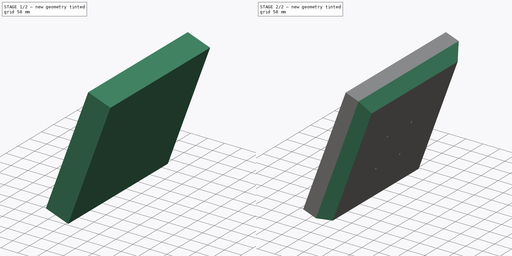
[diagram: build sequence overview — one tinted view per stage of 2, left to right]
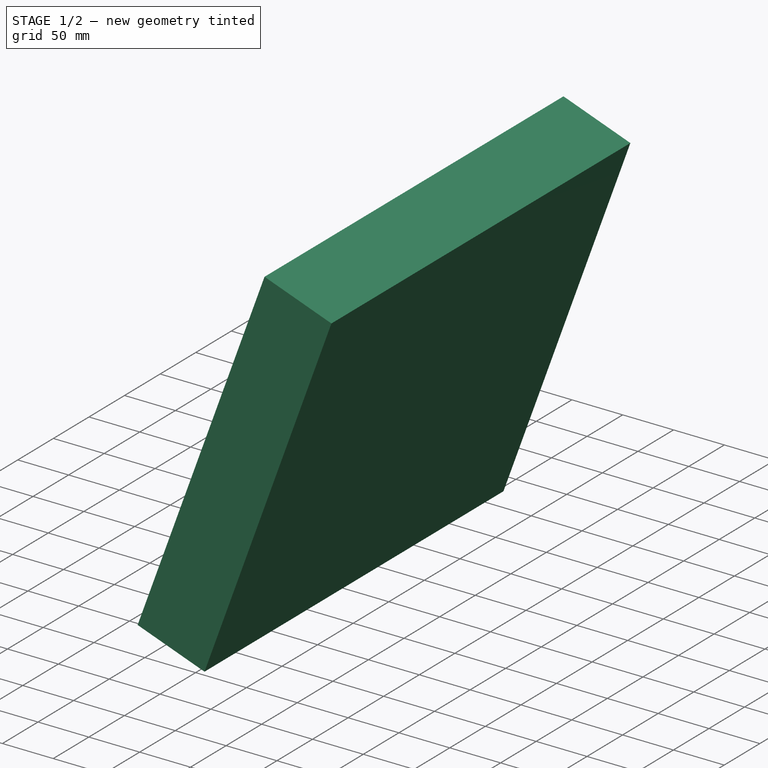
[diagram: stage 1 of 2 — iso view after this stage's code; geometry added in this stage tinted green]
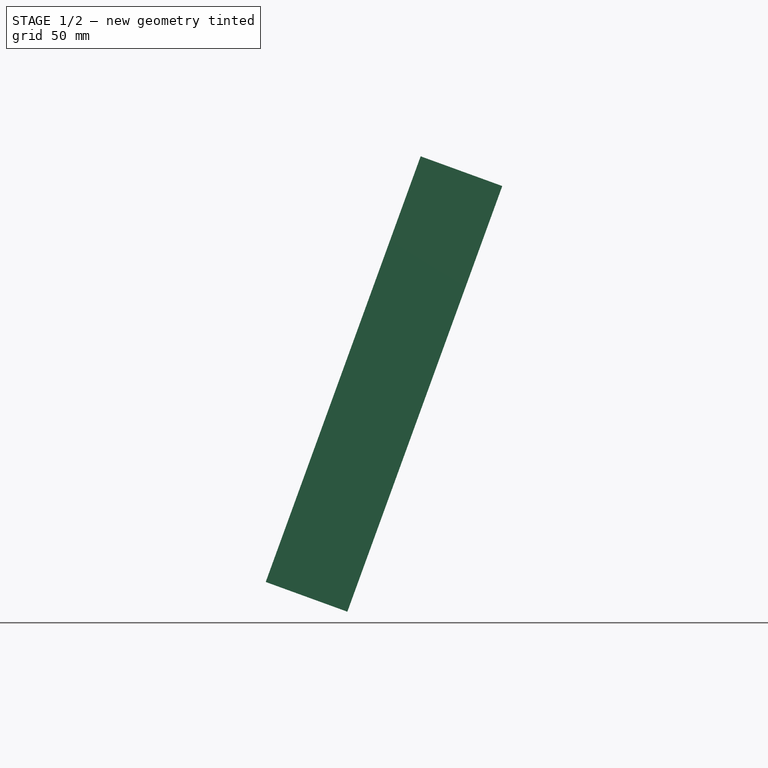
[diagram: stage 1 of 2 — front view after this stage's code; geometry added in this stage tinted green]
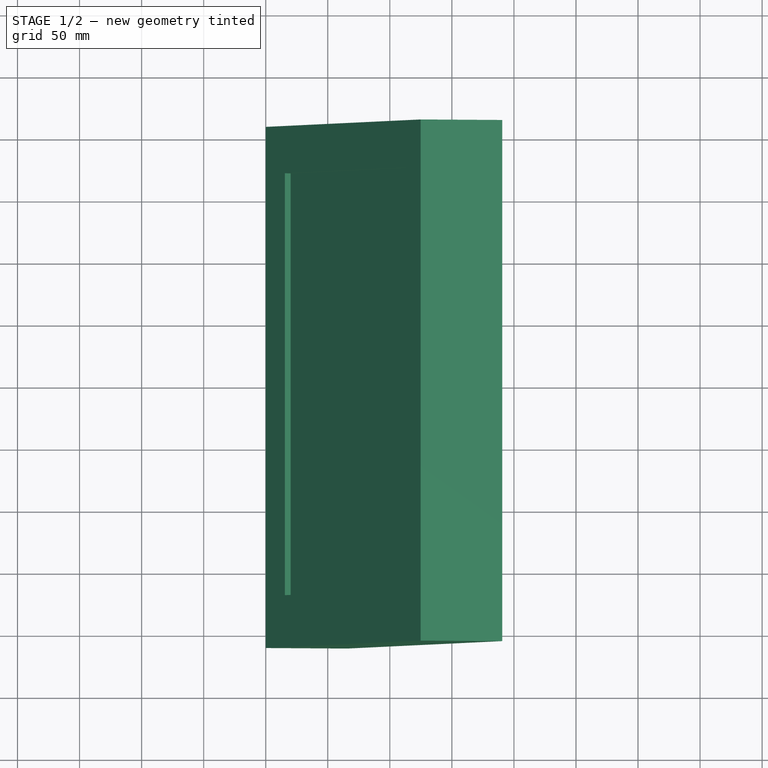
[diagram: stage 1 of 2 — top view after this stage's code; geometry added in this stage tinted green]
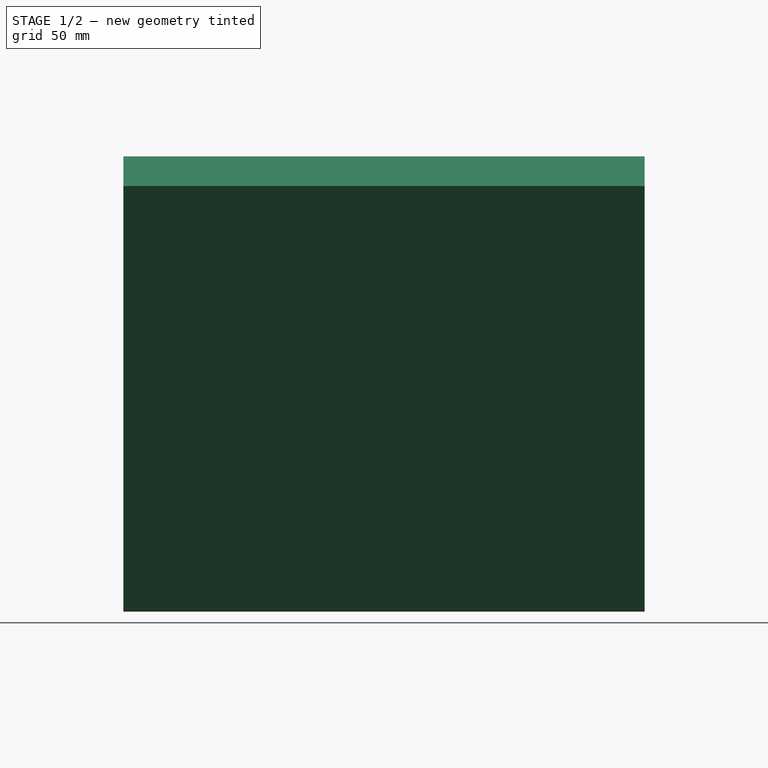
[diagram: stage 1 of 2 — right view after this stage's code; geometry added in this stage tinted green]
FCSTD DOCUMENT  (FreeCAD 0.19R24291 (Git))
Label: 1100_Monitor_AOC-LM-700_420-365-70
License: All rights reserved
LicenseURL: http://en.wikipedia.org/wiki/All_rights_reserved
objects: Sketcher::SketchObject×3, PartDesign::Pad×1, PartDesign::Pocket×1, Spreadsheet::Sheet×1, PartDesign::Hole×1, PartDesign::Chamfer×1, PartDesign::Body×1, App::Part×1
note: 12 computed .brp shape members not serialized (recipe doc carries the construction recipe); baked Part::Feature solids carry a one-line shape summary decoded from their .brp

FEATURE [Sketcher::SketchObject] Sketch002
  FullyConstrained = true
  MapMode = 5
  Placement = pos=(0,0,0) rot=(0,0.707107,0.707107;3.14159rad)
  Support = -> [XZ_Plane001]
  expr: Constraints[7] = <<Monitor>>.D_monitor
  expr: Constraints[8] = <<Monitor>>.H_monitor
  sketch-geometry (4):
    g0: LineSegment StartX=-124.837 StartY=342.988 StartZ=0 EndX=0 EndY=0 EndZ=0
    g1: LineSegment StartX=0 StartY=0 StartZ=0 EndX=-65.7785 EndY=-23.9414 EndZ=0
    g2: LineSegment StartX=-65.7785 StartY=-23.9414 StartZ=0 EndX=-190.616 EndY=319.046 EndZ=0
    g3: LineSegment StartX=-190.616 StartY=319.046 StartZ=0 EndX=-124.837 EndY=342.988 EndZ=0
  constraints (11):
    c: Coincident(g2,g1)
    c: Coincident(g3,g2)
    c: Coincident(g3,g0)
    c: Perpendicular(g1,g0)
    c: Perpendicular(g2,g1)
    c: Perpendicular(g2,g3)
    c: Coincident(g1,g0)
    c: Distance(g1) = 70
    c: Distance(g2) = 365
    c: Coincident(g0,g-1)
    c: Angle(g-2,g0) = 0.349066
FEATURE [PartDesign::Pad] Pad002
  AllowMultiFace = false
  Direction = (1,1,1)
  Length = 210
  Length2 = 210
  Placement = pos=(0,0,0) rot=(1,0,0;1.5708rad)
  Profile = -> Sketch002
  Type = 4
  expr: Length = <<Monitor>>.W_monitor / 2
  expr: Length2 = <<Monitor>>.W_monitor / 2
FEATURE [Sketcher::SketchObject] Sketch
  ExternalGeometry = -> [Pad002]
  FullyConstrained = false
  MapMode = 5
  Placement = pos=(-2.67e-14,0,9.7e-15) rot=(-0.573576,0,0.819152;3.14159rad)
  Support = -> [Pad002]
  expr: Constraints[16] = <<Monitor>>.LCD_Edge_Bottom
  expr: Constraints[17] = <<Monitor>>.LCD_Width
  expr: Constraints[18] = <<Monitor>>.LCD_Heiglt
  sketch-geometry (7):
    g0: LineSegment StartX=-187.5 StartY=-1.85365 StartZ=0 EndX=-45 EndY=-171.854 EndZ=0
    g1: LineSegment StartX=-330 StartY=168.146 StartZ=0 EndX=-45 EndY=168.146 EndZ=0
    g2: LineSegment StartX=-45 StartY=168.146 StartZ=0 EndX=-45 EndY=-171.854 EndZ=0
    g3: LineSegment StartX=-45 StartY=-171.854 StartZ=0 EndX=-330 EndY=-171.854 EndZ=0
    g4: LineSegment StartX=-330 StartY=-171.854 StartZ=0 EndX=-330 EndY=168.146 EndZ=0
    g5: LineSegment StartX=-330 StartY=168.146 StartZ=0 EndX=-187.5 EndY=-1.85365 EndZ=0
    g6: LineSegment StartX=0 StartY=0 StartZ=0 EndX=-45 EndY=0 EndZ=0
  constraints (19):
    c: Coincident(g1,g2)
    c: Coincident(g2,g3)
    c: Coincident(g3,g4)
    c: Horizontal(g1)
    c: Horizontal(g3)
    c: Vertical(g2)
    c: Vertical(g4)
    c: Coincident(g2,g0)
    c: Coincident(g4,g1)
    c: Coincident(g5,g1)
    c: Coincident(g5,g0)
    c: Equal(g0,g5)
    c: Parallel(g5,g0)
    c: Coincident(g6,g-1)
    c: PointOnObject(g6,g2)
    c: Perpendicular(g2,g6)
    c: DistanceX(g6,g6) = 45
    c: DistanceY(g4,g4) = 340
    c: DistanceX(g1,g1) = 285
FEATURE [PartDesign::Pocket] Pocket
  AllowMultiFace = false
  BaseFeature = -> Pad002
  Length = 5
  Length2 = 100
  Placement = pos=(0,0,0) rot=(1,0,0;1.5708rad)
  Profile = -> Sketch
  Type = 0
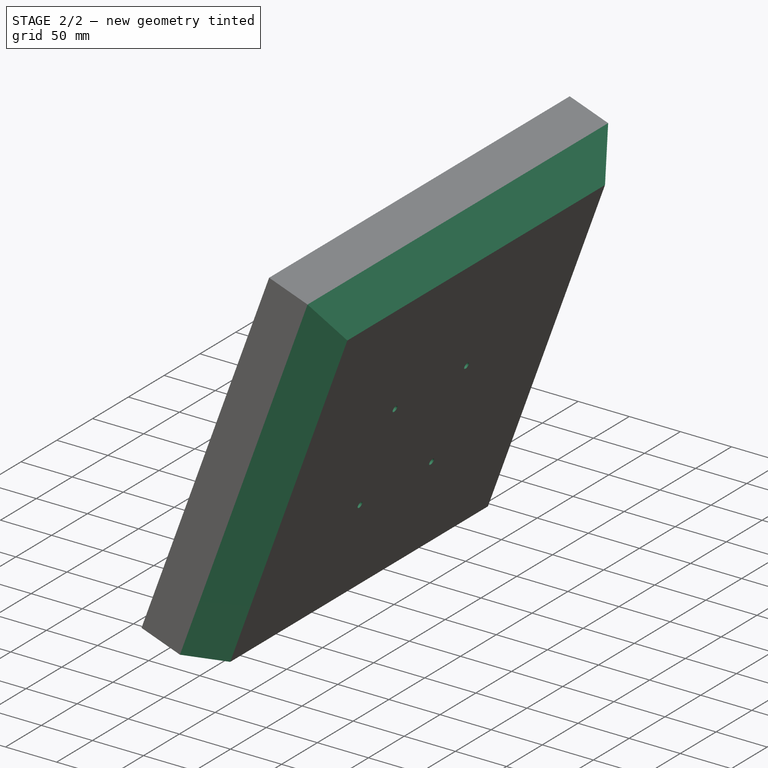
[diagram: stage 2 of 2 — iso view after this stage's code; geometry added in this stage tinted green]
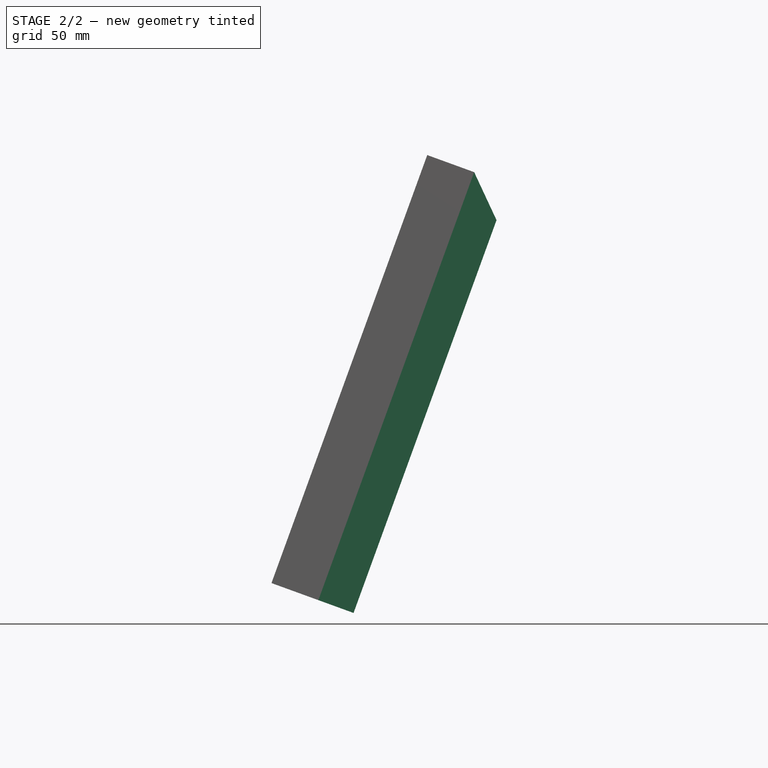
[diagram: stage 2 of 2 — front view after this stage's code; geometry added in this stage tinted green]
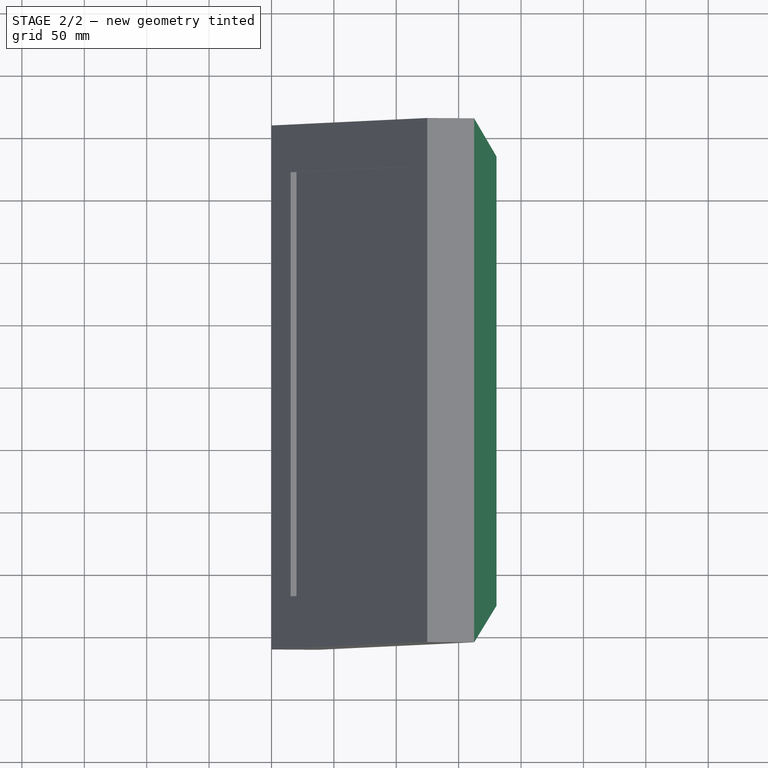
[diagram: stage 2 of 2 — top view after this stage's code; geometry added in this stage tinted green]
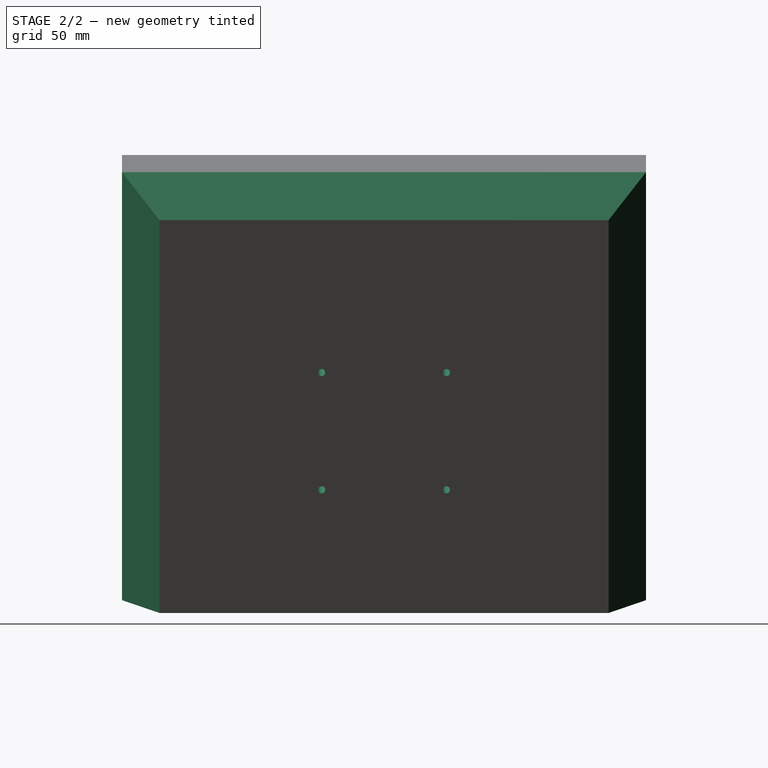
[diagram: stage 2 of 2 — right view after this stage's code; geometry added in this stage tinted green]
FEATURE [Spreadsheet::Sheet] Spreadsheet  label="Monitor"
  cells = E2=MODEL AOC LM-700; B3=Monitor Outer Dimensions; B4=Width; C4(W_monitor)=420; D4=W_monitor; E4=420; B5=Height; C5(H_monitor)=365; D5=H_monitor; E5=365; B6=Depth; C6(D_monitor)=70; D6=D_monitor; E6=70; B7=Face Thickness; C7(T_Monitor)=30; D7=T_Monitor; E7=30; B9=Monitor Mounting; B10=Width; C10(W_mount)=100; D10=W_mount; E10=100; B11=Height; C11(H_mount)=100; D11=H_mount; E11=100; B12=HeightMounting; C12(H0_mount)==365 - 160 - 100; D12=H0_mount; E12==365 - 100 - 100; B13=ScrewSize; C13(D_screw)=8; D13=D_screw; B15=Monitor AREA; C16(LCD_Width)==420 - 40 - 40; D16=LCD_Width; E16==420 - 40 - 40; C17(LCD_Heiglt)==365 - 40 - 40; D17=LCD_Heiglt; E17==365 - 40 - 40; C18(LCD_Edge_Bottom)=45; D18=LCD_Edge_Bottom; E18=45
FEATURE [Sketcher::SketchObject] Sketch003
  ExternalGeometry = -> [Pocket]
  FullyConstrained = false
  MapMode = 5
  Placement = pos=(65.7785,2.4773e-12,-23.9414) rot=(0.819152,0,0.573576;3.14159rad)
  Support = -> [Pocket]
  expr: Constraints[27] = <<Monitor>>.W_mount
  expr: Constraints[24] = <<Monitor>>.H_mount
  expr: Constraints[26] = <<Monitor>>.H0_mount
  sketch-geometry (12):
    g0: LineSegment StartX=365 StartY=210 StartZ=0 EndX=365 EndY=-2.84e-14 EndZ=0
    g1: LineSegment StartX=365 StartY=-2.84e-14 StartZ=0 EndX=365 EndY=-210 EndZ=0
    g2: LineSegment StartX=365 StartY=-2.84e-14 StartZ=0 EndX=155 EndY=-1.54e-14 EndZ=0
    g3: LineSegment StartX=155 StartY=-1.54e-14 StartZ=0 EndX=205 EndY=50 EndZ=0
    g4: LineSegment StartX=155 StartY=-1.54e-14 StartZ=0 EndX=105 EndY=50 EndZ=0
    g5: LineSegment StartX=155 StartY=-1.54e-14 StartZ=0 EndX=105 EndY=-50 EndZ=0
    g6: LineSegment StartX=155 StartY=-1.54e-14 StartZ=0 EndX=205 EndY=-50 EndZ=0
    g7: Circle CenterX=105 CenterY=50 CenterZ=0 NormalX=0 NormalY=0 NormalZ=1 AngleXU=0 Radius=2
    g8: Circle CenterX=105 CenterY=-50 CenterZ=0 NormalX=0 NormalY=0 NormalZ=1 AngleXU=0 Radius=1.28365
    g9: Circle CenterX=205 CenterY=-50 CenterZ=0 NormalX=0 NormalY=0 NormalZ=1 AngleXU=0 Radius=2
    g10: Circle CenterX=205 CenterY=50 CenterZ=0 NormalX=0 NormalY=0 NormalZ=1 AngleXU=0 Radius=2
    g11: Circle CenterX=105 CenterY=-50 CenterZ=0 NormalX=0 NormalY=0 NormalZ=1 AngleXU=0 Radius=2
  constraints (29):
    c: Coincident(g-3,g1)
    c: Equal(g1,g0)
    c: Coincident(g0,g-3)
    c: Coincident(g1,g0)
    c: Parallel(g1,g0)
    c: Coincident(g5,g2)
    c: Coincident(g3,g4)
    c: Coincident(g6,g3)
    c: Coincident(g3,g2)
    c: Coincident(g2,g0)
    c: Coincident(g7,g4)
    c: Equal(g7,g10)
    c: Equal(g10,g9)
    c: Equal(g9,g11)
    c: Coincident(g9,g6)
    c: Coincident(g11,g8)
    c: Coincident(g8,g5)
    c: Coincident(g10,g3)
    c: Perpendicular(g1,g2)
    c: Equal(g6,g3)
    c: Equal(g5,g4)
    c: Equal(g4,g3)
    c: Parallel(g5,g3)
    c: Parallel(g6,g4)
    c: DistanceX(g7,g10) = 100
    c: Diameter(g9) = 4
    c: DistanceX(g-1,g7) = 105
    c: DistanceY(g9,g10) = 100
    c: Horizontal(g7,g10)
FEATURE [PartDesign::Hole] Hole
  AllowMultiFace = false
  BaseFeature = -> Pocket
  Depth = 25
  DepthType = 0
  Diameter = 6
  DrillForDepth = false
  DrillPoint = 1
  DrillPointAngle = 118
  HoleCutCountersinkAngle = 90
  HoleCutCustomValues = false
  HoleCutDepth = 0
  HoleCutDiameter = 0
  HoleCutType = 0
  ModelActualThread = false
  Placement = pos=(0,0,0) rot=(1,0,0;1.5708rad)
  Profile = -> Sketch003
  Tapered = false
  TaperedAngle = 90
  ThreadAngle = 0
  ThreadClass = 0
  ThreadCutOffInner = 0
  ThreadCutOffOuter = 0
  ThreadDirection = 0
  ThreadFit = 0
  ThreadPitch = 0
  ThreadSize = 0
  ThreadType = 0
  Threaded = false
FEATURE [PartDesign::Chamfer] Chamfer
  Angle = 45
  Base = -> Hole [Edge9,Edge13,Edge15]
  BaseFeature = -> Hole
  ChamferType = 0
  FlipDirection = false
  Placement = pos=(0,0,0) rot=(1,0,0;1.5708rad)
  Size = 30
  Size2 = 1
  SupportTransform = false
  expr: Size = <<Monitor>>.T_Monitor
FEATURE [PartDesign::Body] Pad002Body
  Group = -> [Sketch002,Pad002,Sketch,Pocket,Sketch003,Hole,Chamfer]
  Origin = -> Origin001
  Tip = -> Chamfer
FEATURE [App::Part] Part
  Group = -> [Pad002Body]
  License = CC BY 3.0
  LicenseURL = http://creativecommons.org/licenses/by/3.0/
  Origin = -> Origin
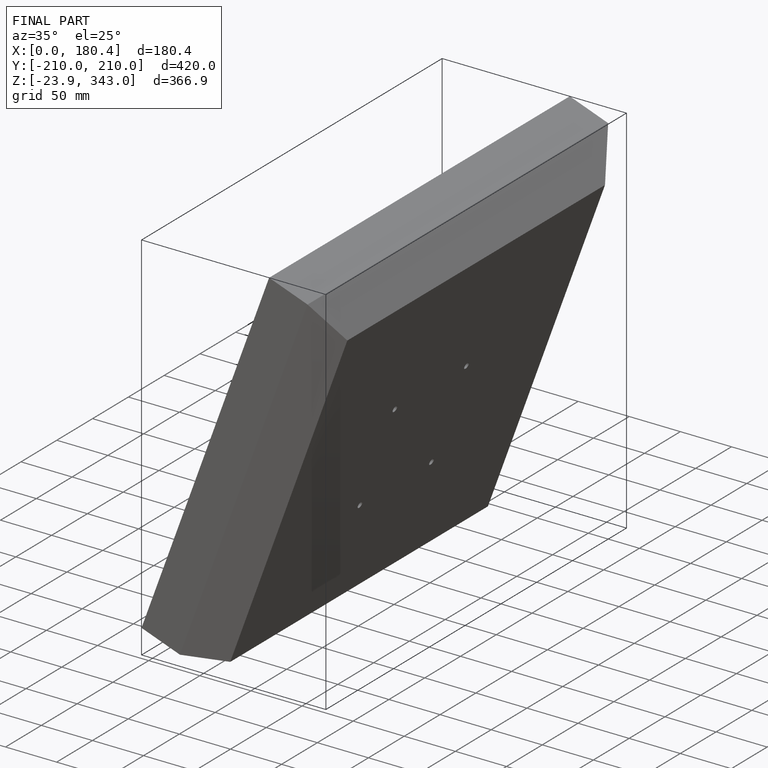
[diagram: finished part — iso view with bounding-box wireframe]
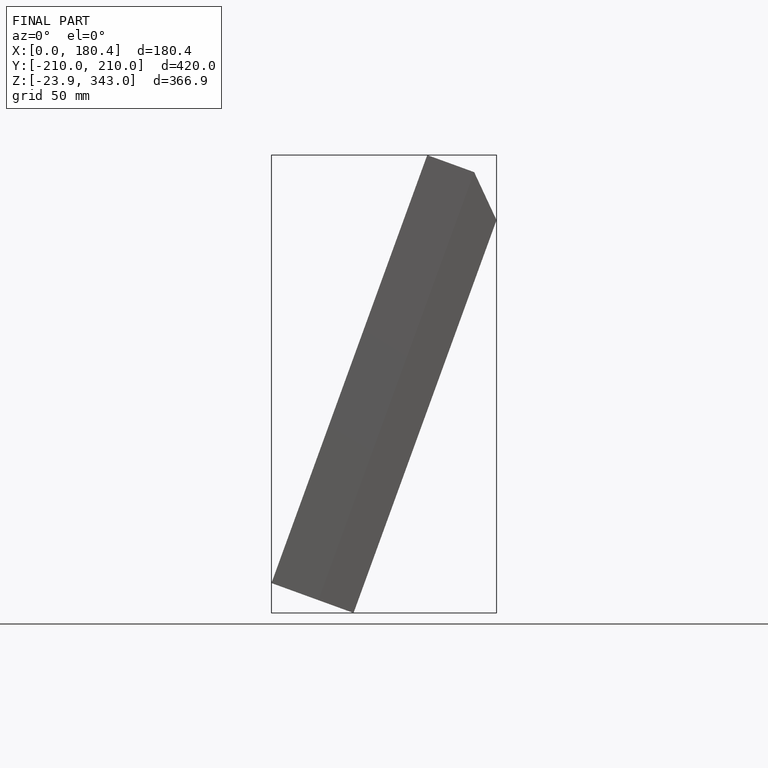
[diagram: finished part — front view with bounding-box wireframe]
